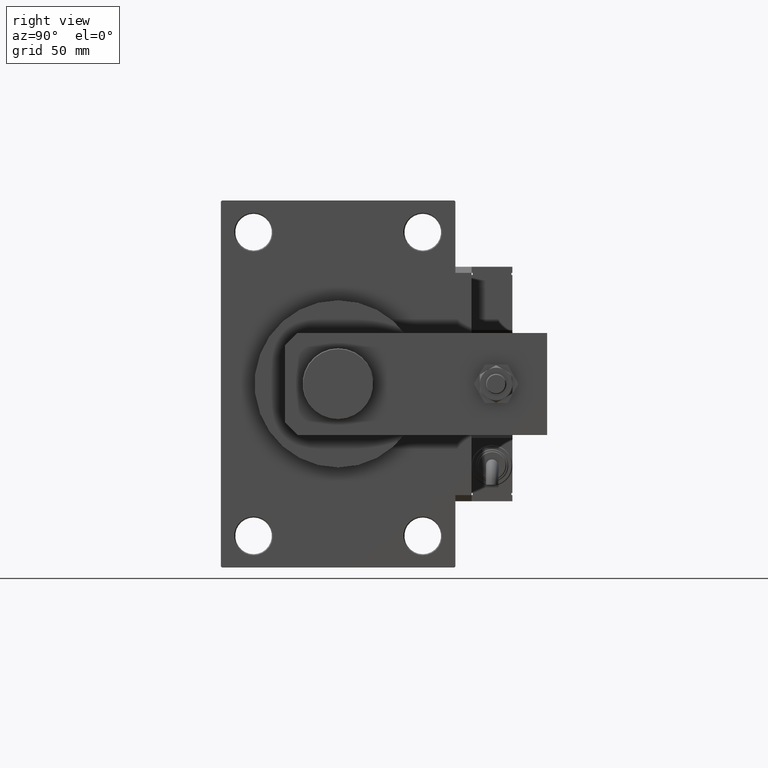
[diagram: clean part render]
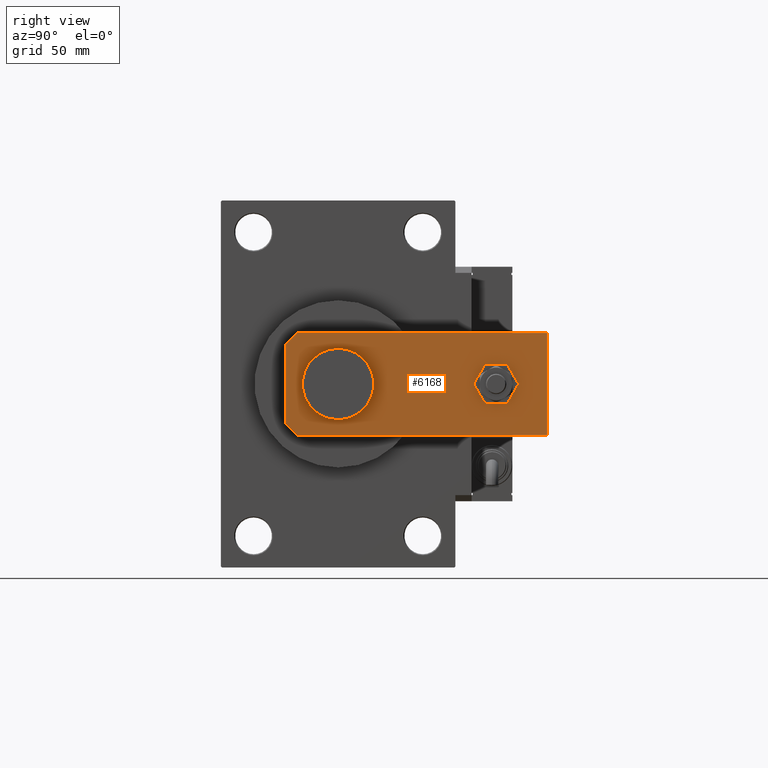
[diagram: same view with one face highlighted and labeled with its STEP entity id]
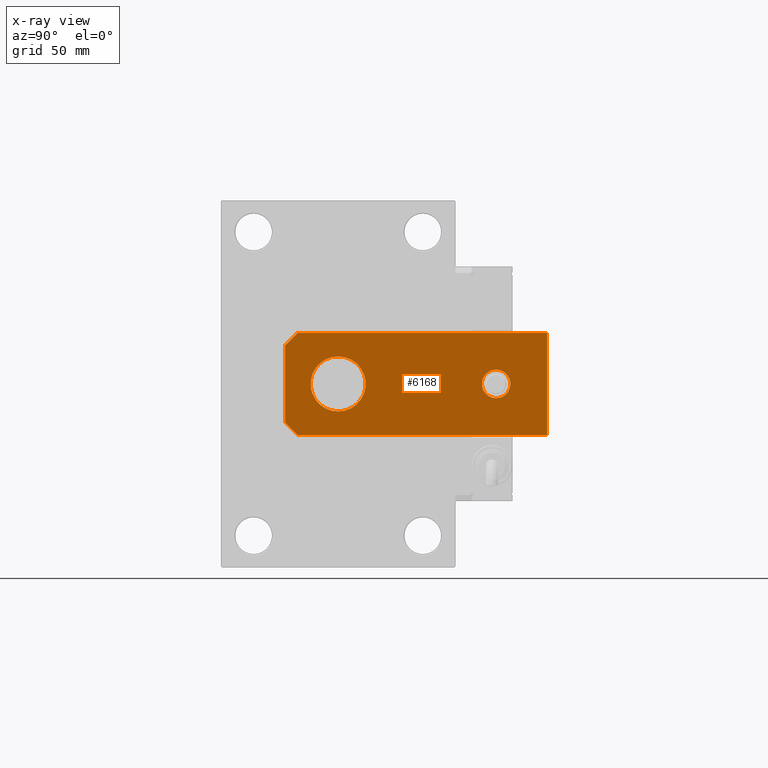
[diagram: x-ray of the same camera — body ghosted, the highlighted face saturated]
A machine part, right view. The second image highlights one B-rep face of the part: STEP entity #6168.
The next image is the same camera in x-ray: the body ghosted, the highlighted face saturated — about 0% of this face is hidden behind the body in this view.
In plain terms, the highlighted planar face has unit normal (-1, 0, 0).
Its self-contained STEP definition (entity closure, byte-faithful):
#461 = CARTESIAN_POINT ( 'NONE',  ( 13.50000000000000000, 26.00000000000001066, 0.000000000000000000 ) ) ;
#1050 = EDGE_CURVE ( 'NONE', #46804, #11867, #18262, .T. ) ;
#1199 = EDGE_LOOP ( 'NONE', ( #13120, #9368 ) ) ;
#1253 = ORIENTED_EDGE ( 'NONE', *, *, #27504, .F. ) ;
#2318 = DIRECTION ( 'NONE',  ( -1.079983486989451872E-16, -1.000000000000000000, 0.000000000000000000 ) ) ;
#2474 = DIRECTION ( 'NONE',  ( -0.000000000000000000, 0.000000000000000000, 1.000000000000000000 ) ) ;
#2770 = CARTESIAN_POINT ( 'NONE',  ( 25.00000000000001421, 6.000000000000019540, 0.000000000000000000 ) ) ;
#2941 = AXIS2_PLACEMENT_3D ( 'NONE', #30017, #9587, #25675 ) ;
#3803 = CARTESIAN_POINT ( 'NONE',  ( -18.99999999999999645, 0.000000000000000000, 0.000000000000000000 ) ) ;
#4065 = LINE ( 'NONE', #3803, #53770 ) ;
#5249 = AXIS2_PLACEMENT_3D ( 'NONE', #6822, #2474, #19098 ) ;
#5782 = CARTESIAN_POINT ( 'NONE',  ( -25.00000000000001421, 6.000000000000047073, 0.000000000000000000 ) ) ;
#5871 = CARTESIAN_POINT ( 'NONE',  ( -25.00000000000000000, 128.5000000000000000, 0.000000000000000000 ) ) ;
#6168 = ADVANCED_FACE ( 'NONE', ( #7365, #27268, #10910 ), #43860, .F. ) ;
#6515 = CARTESIAN_POINT ( 'NONE',  ( 7.000000000000004441, 103.5000000000000142, 0.000000000000000000 ) ) ;
#6822 = CARTESIAN_POINT ( 'NONE',  ( 0.000000000000000000, 0.000000000000000000, 0.000000000000000000 ) ) ;
#7365 = FACE_OUTER_BOUND ( 'NONE', #36312, .T. ) ;
#8188 = AXIS2_PLACEMENT_3D ( 'NONE', #35696, #23184, #39502 ) ;
#9368 = ORIENTED_EDGE ( 'NONE', *, *, #42706, .T. ) ;
#9406 = CIRCLE ( 'NONE', #21600, 13.50000000000000000 ) ;
#9587 = DIRECTION ( 'NONE',  ( 0.000000000000000000, 0.000000000000000000, 1.000000000000000000 ) ) ;
#10910 = FACE_BOUND ( 'NONE', #37654, .T. ) ;
#10936 = ORIENTED_EDGE ( 'NONE', *, *, #30377, .F. ) ;
#11085 = VECTOR ( 'NONE', #32441, 1000.000000000000114 ) ;
#11715 = VERTEX_POINT ( 'NONE', #5782 ) ;
#11817 = CARTESIAN_POINT ( 'NONE',  ( 0.000000000000000000, 26.00000000000001066, 0.000000000000000000 ) ) ;
#11867 = VERTEX_POINT ( 'NONE', #48897 ) ;
#13120 = ORIENTED_EDGE ( 'NONE', *, *, #43843, .T. ) ;
#13737 = VERTEX_POINT ( 'NONE', #38112 ) ;
#15568 = LINE ( 'NONE', #2770, #11085 ) ;
#15882 = ORIENTED_EDGE ( 'NONE', *, *, #1050, .F. ) ;
#17773 = LINE ( 'NONE', #47427, #40630 ) ;
#17830 = ORIENTED_EDGE ( 'NONE', *, *, #29839, .T. ) ;
#17957 = ORIENTED_EDGE ( 'NONE', *, *, #50496, .F. ) ;
#18139 = VERTEX_POINT ( 'NONE', #6515 ) ;
#18262 = LINE ( 'NONE', #47107, #30389 ) ;
#18520 = EDGE_CURVE ( 'NONE', #37634, #32582, #43862, .T. ) ;
#19098 = DIRECTION ( 'NONE',  ( 1.000000000000000000, 0.000000000000000000, 0.000000000000000000 ) ) ;
#19877 = DIRECTION ( 'NONE',  ( 1.000000000000000000, 0.000000000000000000, 0.000000000000000000 ) ) ;
#20162 = DIRECTION ( 'NONE',  ( -0.7071067811865459074, 0.7071067811865491270, -0.000000000000000000 ) ) ;
#21344 = CARTESIAN_POINT ( 'NONE',  ( 25.00000000000000355, 128.5000000000000000, 0.000000000000000000 ) ) ;
#21600 = AXIS2_PLACEMENT_3D ( 'NONE', #49531, #40545, #19877 ) ;
#22087 = DIRECTION ( 'NONE',  ( -1.000000000000000000, 0.000000000000000000, 0.000000000000000000 ) ) ;
#22395 = CARTESIAN_POINT ( 'NONE',  ( 25.00000000000001421, 6.000000000000018652, 0.000000000000000000 ) ) ;
#23184 = DIRECTION ( 'NONE',  ( 0.000000000000000000, 0.000000000000000000, 1.000000000000000000 ) ) ;
#25675 = DIRECTION ( 'NONE',  ( 1.000000000000000000, 0.000000000000000000, 0.000000000000000000 ) ) ;
#26521 = CARTESIAN_POINT ( 'NONE',  ( -18.99999999999999645, 0.000000000000000000, 0.000000000000000000 ) ) ;
#27268 = FACE_BOUND ( 'NONE', #1199, .T. ) ;
#27504 = EDGE_CURVE ( 'NONE', #34222, #46804, #17773, .T. ) ;
#28194 = ORIENTED_EDGE ( 'NONE', *, *, #18520, .T. ) ;
#28259 = EDGE_CURVE ( 'NONE', #34222, #13737, #15568, .T. ) ;
#28973 = EDGE_CURVE ( 'NONE', #32582, #37634, #9406, .T. ) ;
#29839 = EDGE_CURVE ( 'NONE', #33028, #11715, #4065, .T. ) ;
#29877 = CIRCLE ( 'NONE', #2941, 7.000000000000004441 ) ;
#30017 = CARTESIAN_POINT ( 'NONE',  ( 2.336634443525536587E-16, 103.5000000000000142, 0.000000000000000000 ) ) ;
#30377 = EDGE_CURVE ( 'NONE', #11867, #11715, #47519, .T. ) ;
#30389 = VECTOR ( 'NONE', #22087, 1000.000000000000000 ) ;
#30549 = DIRECTION ( 'NONE',  ( -8.099876152420888730E-17, 1.000000000000000000, 0.000000000000000000 ) ) ;
#32038 = VECTOR ( 'NONE', #2318, 1000.000000000000000 ) ;
#32441 = DIRECTION ( 'NONE',  ( -0.7071067811865491270, -0.7071067811865459074, -0.000000000000000000 ) ) ;
#32582 = VERTEX_POINT ( 'NONE', #461 ) ;
#33028 = VERTEX_POINT ( 'NONE', #26521 ) ;
#33157 = CARTESIAN_POINT ( 'NONE',  ( -25.00000000000001421, 0.000000000000000000, 0.000000000000000000 ) ) ;
#34222 = VERTEX_POINT ( 'NONE', #22395 ) ;
#35696 = CARTESIAN_POINT ( 'NONE',  ( 2.336634443525536587E-16, 103.5000000000000142, 0.000000000000000000 ) ) ;
#36256 = ORIENTED_EDGE ( 'NONE', *, *, #28259, .T. ) ;
#36312 = EDGE_LOOP ( 'NONE', ( #17957, #17830, #10936, #15882, #1253, #36256 ) ) ;
#36597 = CARTESIAN_POINT ( 'NONE',  ( -7.000000000000004441, 103.5000000000000142, 0.000000000000000000 ) ) ;
#37126 = DIRECTION ( 'NONE',  ( 0.000000000000000000, 0.000000000000000000, 1.000000000000000000 ) ) ;
#37502 = LINE ( 'NONE', #33157, #43227 ) ;
#37634 = VERTEX_POINT ( 'NONE', #45040 ) ;
#37654 = EDGE_LOOP ( 'NONE', ( #28194, #49834 ) ) ;
#38112 = CARTESIAN_POINT ( 'NONE',  ( 18.99999999999996803, 0.000000000000000000, 0.000000000000000000 ) ) ;
#39502 = DIRECTION ( 'NONE',  ( 1.000000000000000000, 0.000000000000000000, 0.000000000000000000 ) ) ;
#40360 = CIRCLE ( 'NONE', #8188, 7.000000000000004441 ) ;
#40545 = DIRECTION ( 'NONE',  ( 0.000000000000000000, 0.000000000000000000, 1.000000000000000000 ) ) ;
#40630 = VECTOR ( 'NONE', #30549, 1000.000000000000000 ) ;
#42706 = EDGE_CURVE ( 'NONE', #18139, #46754, #29877, .T. ) ;
#43227 = VECTOR ( 'NONE', #49770, 1000.000000000000000 ) ;
#43843 = EDGE_CURVE ( 'NONE', #46754, #18139, #40360, .T. ) ;
#43860 = PLANE ( 'NONE',  #5249 ) ;
#43862 = CIRCLE ( 'NONE', #45620, 13.50000000000000000 ) ;
#44762 = DIRECTION ( 'NONE',  ( 1.000000000000000000, 0.000000000000000000, 0.000000000000000000 ) ) ;
#45040 = CARTESIAN_POINT ( 'NONE',  ( -13.50000000000000000, 26.00000000000001066, 0.000000000000000000 ) ) ;
#45620 = AXIS2_PLACEMENT_3D ( 'NONE', #11817, #37126, #44762 ) ;
#46754 = VERTEX_POINT ( 'NONE', #36597 ) ;
#46804 = VERTEX_POINT ( 'NONE', #21344 ) ;
#47107 = CARTESIAN_POINT ( 'NONE',  ( 25.00000000000000355, 128.5000000000000000, 0.000000000000000000 ) ) ;
#47427 = CARTESIAN_POINT ( 'NONE',  ( 25.00000000000001421, 0.000000000000000000, 0.000000000000000000 ) ) ;
#47519 = LINE ( 'NONE', #5871, #32038 ) ;
#48897 = CARTESIAN_POINT ( 'NONE',  ( -25.00000000000000000, 128.5000000000000000, 0.000000000000000000 ) ) ;
#49531 = CARTESIAN_POINT ( 'NONE',  ( 0.000000000000000000, 26.00000000000001066, 0.000000000000000000 ) ) ;
#49770 = DIRECTION ( 'NONE',  ( 1.000000000000000000, 0.000000000000000000, 0.000000000000000000 ) ) ;
#49834 = ORIENTED_EDGE ( 'NONE', *, *, #28973, .T. ) ;
#50496 = EDGE_CURVE ( 'NONE', #33028, #13737, #37502, .T. ) ;
#53770 = VECTOR ( 'NONE', #20162, 1000.000000000000114 ) ;